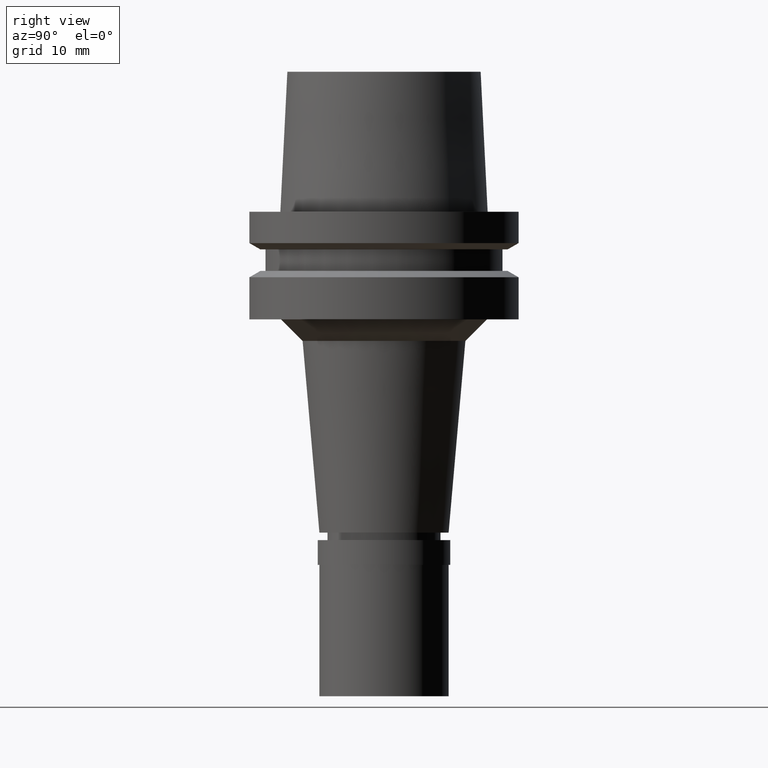
[diagram: clean part render]
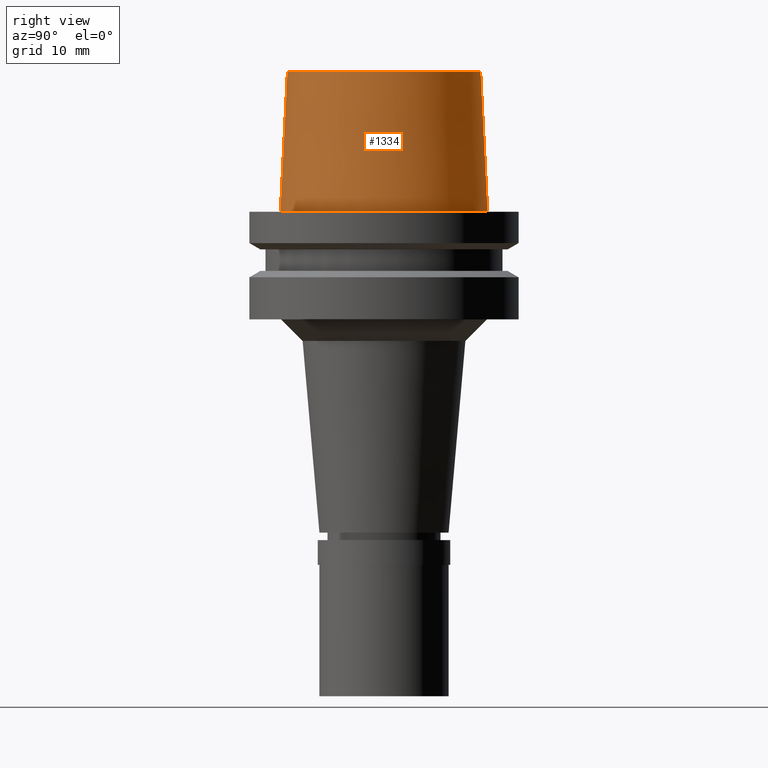
[diagram: same view with one face highlighted and labeled with its STEP entity id]
A machine part, right view. The second image highlights one B-rep face of the part: STEP entity #1334.
In plain terms, the highlighted conical surface has half-angle 2.862 deg.
Its self-contained STEP definition (entity closure, byte-faithful):
#2 = VERTEX_POINT ( 'NONE', #754 ) ;
#129 = ORIENTED_EDGE ( 'NONE', *, *, #2409, .F. ) ;
#163 = ORIENTED_EDGE ( 'NONE', *, *, #643, .T. ) ;
#166 = DIRECTION ( 'NONE',  ( 0.0000000000000000000, 0.0000000000000000000, -1.000000000000000000 ) ) ;
#231 = CARTESIAN_POINT ( 'NONE',  ( 0.0000000000000000000, 8.975000960130000038, 13.00000000000000000 ) ) ;
#273 = DIRECTION ( 'NONE',  ( 0.0000000000000000000, 1.000000000000000000, 0.0000000000000000000 ) ) ;
#334 = AXIS2_PLACEMENT_3D ( 'NONE', #982, #166, #273 ) ;
#609 = CARTESIAN_POINT ( 'NONE',  ( 0.0000000000000000000, -8.975000960130000038, 13.00000000000000000 ) ) ;
#643 = EDGE_CURVE ( 'NONE', #2, #1698, #2481, .T. ) ;
#672 = EDGE_LOOP ( 'NONE', ( #2639, #163, #2006, #129 ) ) ;
#678 = CONICAL_SURFACE ( 'NONE', #2074, 9.300000365763999355, 0.04995830450907576964 ) ;
#754 = CARTESIAN_POINT ( 'NONE',  ( 0.0000000000000000000, -8.975000960130000038, 13.00000000000000000 ) ) ;
#915 = FACE_OUTER_BOUND ( 'NONE', #672, .T. ) ;
#982 = CARTESIAN_POINT ( 'NONE',  ( 0.0000000000000000000, 0.0000000000000000000, 13.00000000000000000 ) ) ;
#1085 = DIRECTION ( 'NONE',  ( 0.0000000000000000000, 0.04993752584484958956, -0.9987523434327927330 ) ) ;
#1285 = VECTOR ( 'NONE', #1444, 999.9999999999998863 ) ;
#1334 = ADVANCED_FACE ( 'NONE', ( #915 ), #678, .T. ) ;
#1336 = VECTOR ( 'NONE', #1085, 999.9999999999998863 ) ;
#1406 = CARTESIAN_POINT ( 'NONE',  ( 0.0000000000000000000, 9.624999771398000448, 1.332267629550000037E-13 ) ) ;
#1416 = CIRCLE ( 'NONE', #1863, 9.624999771398000448 ) ;
#1444 = DIRECTION ( 'NONE',  ( 0.0000000000000000000, -0.04993752584484958956, -0.9987523434327927330 ) ) ;
#1514 = EDGE_CURVE ( 'NONE', #1698, #2197, #1416, .T. ) ;
#1685 = EDGE_CURVE ( 'NONE', #1795, #2, #1899, .T. ) ;
#1698 = VERTEX_POINT ( 'NONE', #2088 ) ;
#1714 = DIRECTION ( 'NONE',  ( 0.0000000000000000000, -1.000000000000000000, 0.0000000000000000000 ) ) ;
#1746 = CARTESIAN_POINT ( 'NONE',  ( 0.0000000000000000000, 0.0000000000000000000, 6.500000000000000000 ) ) ;
#1795 = VERTEX_POINT ( 'NONE', #231 ) ;
#1863 = AXIS2_PLACEMENT_3D ( 'NONE', #2020, #2439, #2479 ) ;
#1899 = CIRCLE ( 'NONE', #334, 8.975000960130000038 ) ;
#2006 = ORIENTED_EDGE ( 'NONE', *, *, #1514, .T. ) ;
#2020 = CARTESIAN_POINT ( 'NONE',  ( 0.0000000000000000000, 0.0000000000000000000, 2.557953848736000191E-13 ) ) ;
#2074 = AXIS2_PLACEMENT_3D ( 'NONE', #1746, #2571, #1714 ) ;
#2088 = CARTESIAN_POINT ( 'NONE',  ( 0.0000000000000000000, -9.624999771398000448, 1.332267629550000037E-13 ) ) ;
#2197 = VERTEX_POINT ( 'NONE', #1406 ) ;
#2322 = LINE ( 'NONE', #2483, #1336 ) ;
#2409 = EDGE_CURVE ( 'NONE', #1795, #2197, #2322, .T. ) ;
#2439 = DIRECTION ( 'NONE',  ( 0.0000000000000000000, 0.0000000000000000000, 1.000000000000000000 ) ) ;
#2479 = DIRECTION ( 'NONE',  ( 0.0000000000000000000, -1.000000000000000000, 0.0000000000000000000 ) ) ;
#2481 = LINE ( 'NONE', #609, #1285 ) ;
#2483 = CARTESIAN_POINT ( 'NONE',  ( 0.0000000000000000000, 8.975000960130000038, 13.00000000000000000 ) ) ;
#2571 = DIRECTION ( 'NONE',  ( 0.0000000000000000000, 0.0000000000000000000, -1.000000000000000000 ) ) ;
#2639 = ORIENTED_EDGE ( 'NONE', *, *, #1685, .T. ) ;